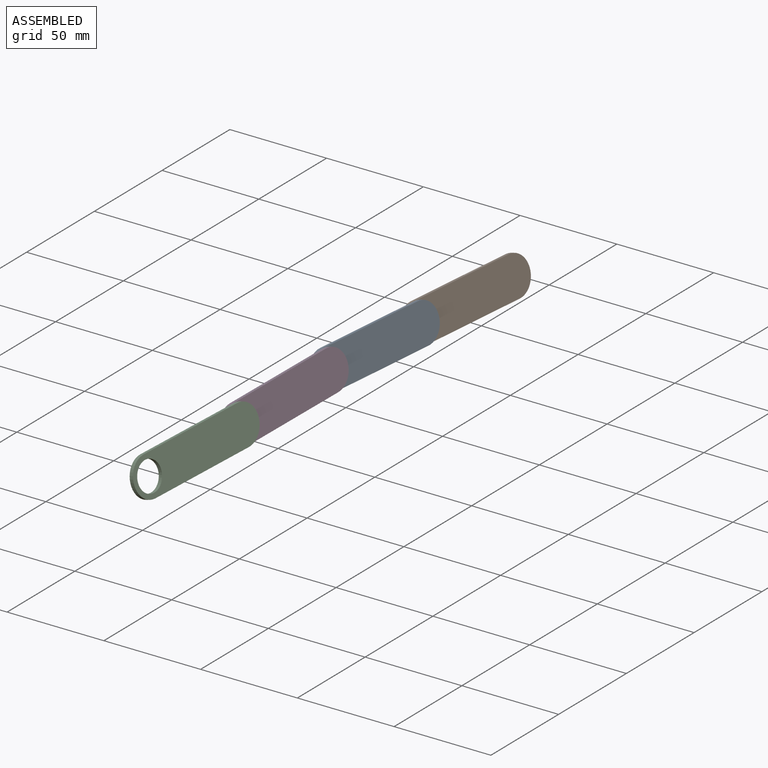
[diagram: assembled view]
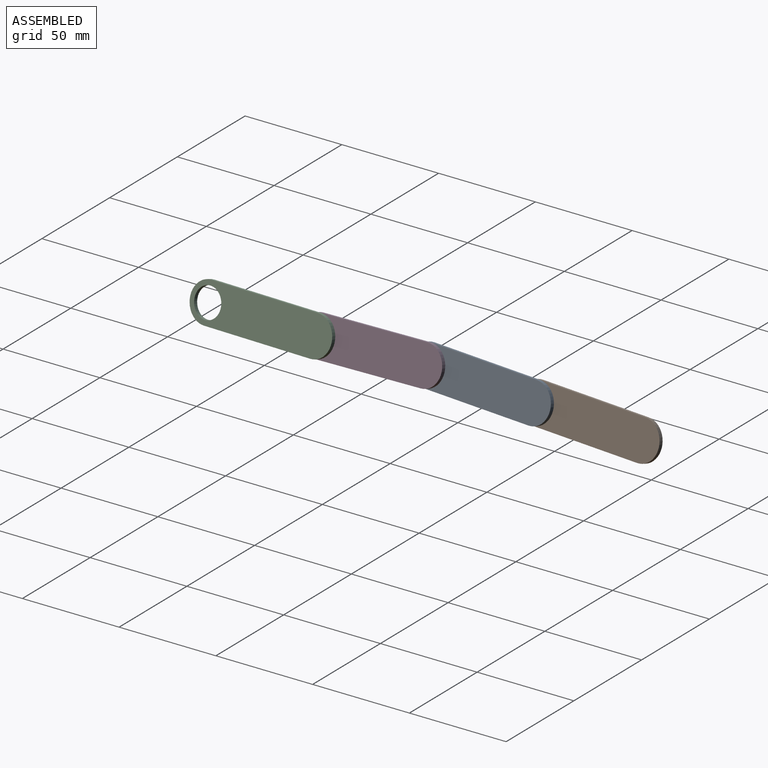
[diagram: assembled view, second angle]
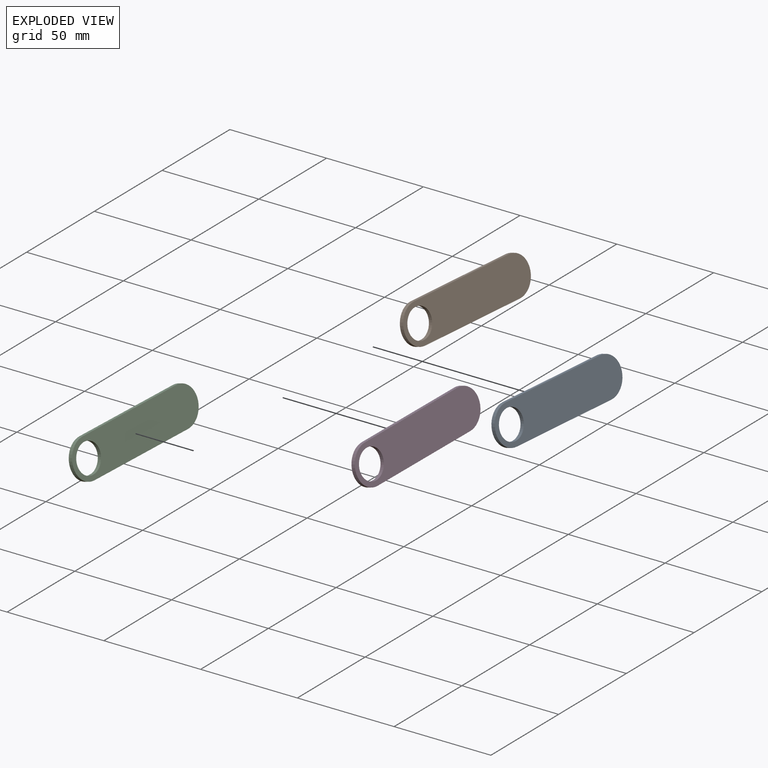
[diagram: exploded view]
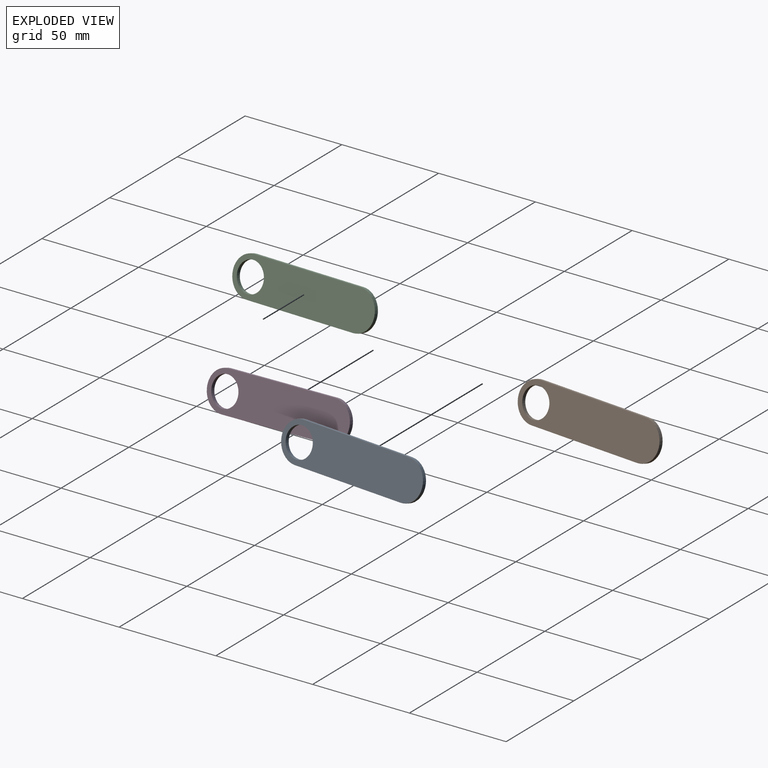
[diagram: exploded view, second angle]
ASSEMBLY  parts=4 mates=3
PART A: 9 faces, bbox 80x20x4 mm
  f0: plane 60x2mm, normal (0,-1,0), area 120mm2, adj f1,f3,f4,f5
  f1: cylinder r=10mm len=20mm, axis (0,0,-1), area 62.8mm2, adj f0,f2,f4,f5
  f2: plane 60x2mm, normal (0,1,0), area 120mm2, adj f1,f3,f4,f5
  f3: cylinder r=10mm len=20mm, axis (0,0,-1), area 62.8mm2, adj f0,f2,f4,f5
  f4: plane 80x20mm, normal (0,0,1), area 1160.7mm2, adj f0,f1,f2,f3,f6,f8
  f5: plane 80x20mm, normal (0,0,-1), area 1337.4mm2, adj f0,f1,f2,f3,f8
  f6: cylinder r=7.5mm len=15mm, axis (0,0,-1), area 94.2mm2, adj f4,f7
  f7: plane 15x15mm, normal (0,0,1), area 176.7mm2, adj f6
  f8: cylinder r=7.5mm len=15mm, axis (0,0,1), area 94.2mm2, adj f4,f5
PART B: same geometry as A
PART C: same geometry as A
PART D: same geometry as A
PLACE A rot(axis=(0.58,-0.65,-0.49),134.1deg) t=(55.07,64.99,38.55)mm
PLACE B rot(axis=(0.58,-0.65,-0.49),134.1deg) t=(60.27,124.8,39.05)mm
PLACE C rot(axis=(0.59,-0.64,-0.49),135deg) t=(45.97,-54.58,33.31)mm
PLACE D rot(axis=(0.6,-0.63,-0.5),135.7deg) t=(50.38,5.21,36.4)mm
MATE revolute B.f1 <-> A.f3  axis (-0.95,0.12,-0.29) through (54.82,95.25,37.93)mm
MATE revolute C.f3 <-> D.f1  axis (-0.95,0.12,-0.29) through (45.44,-24.32,33.62)mm
MATE revolute A.f1 <-> D.f3  axis (-0.95,0.12,-0.29) through (49.62,35.44,37.44)mm
